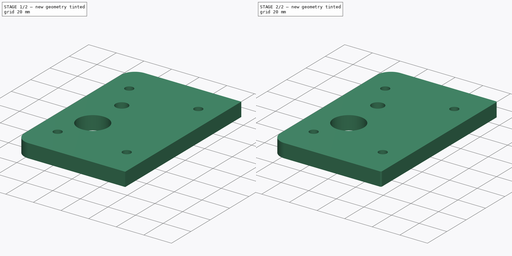
[diagram: build sequence overview — one tinted view per stage of 2, left to right]
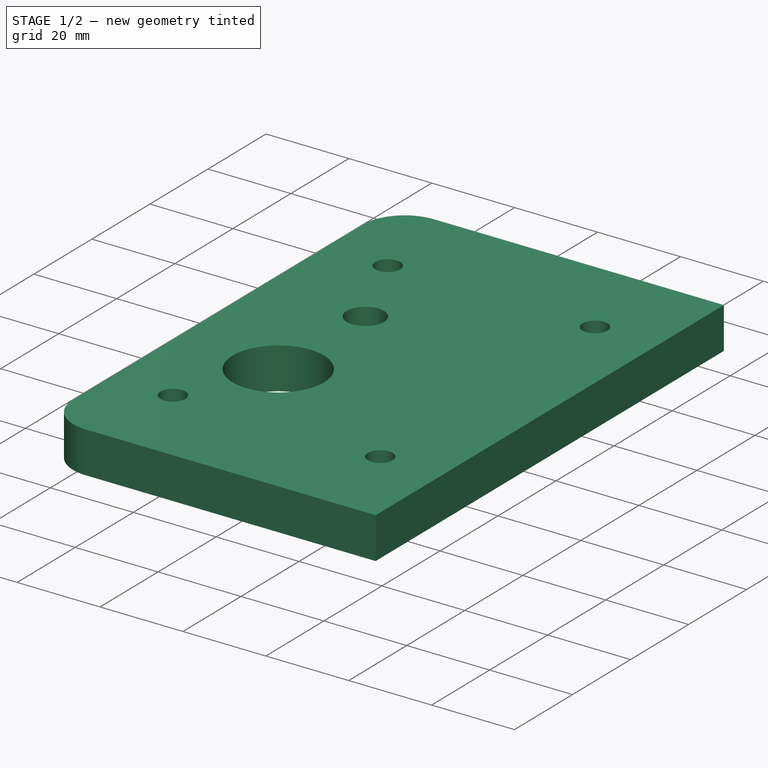
[diagram: stage 1 of 2 — iso view after this stage's code; geometry added in this stage tinted green]
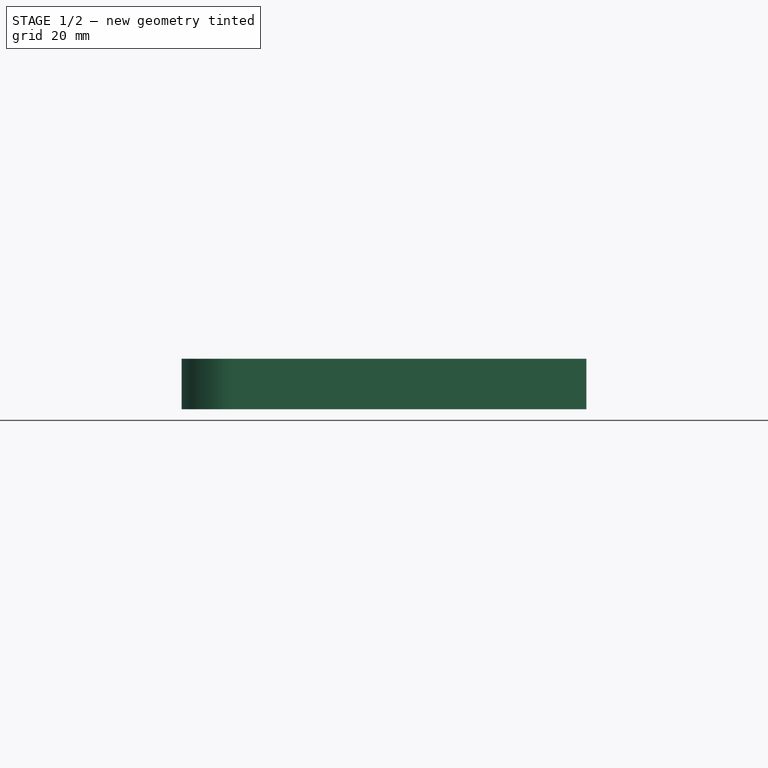
[diagram: stage 1 of 2 — front view after this stage's code; geometry added in this stage tinted green]
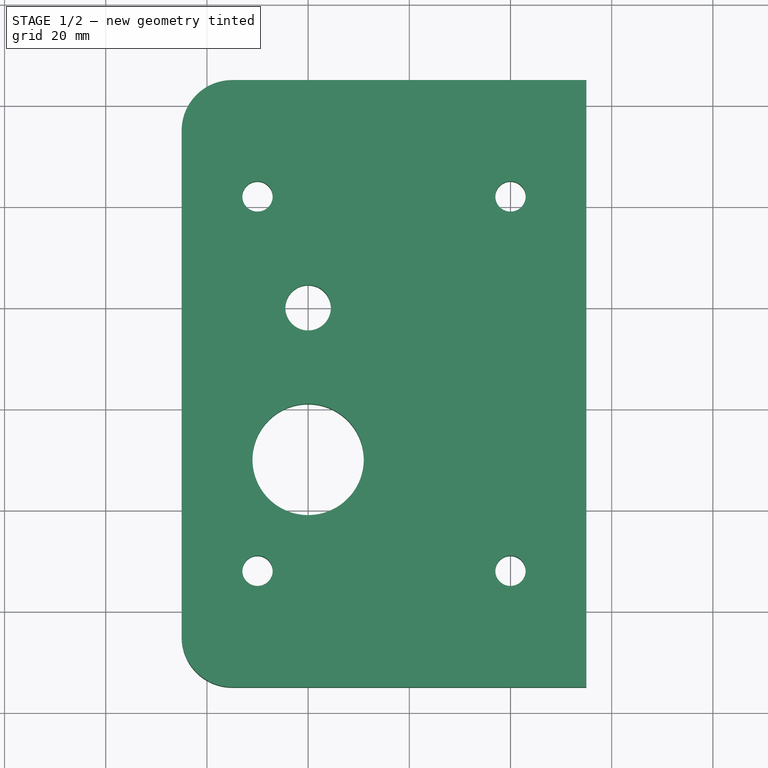
[diagram: stage 1 of 2 — top view after this stage's code; geometry added in this stage tinted green]
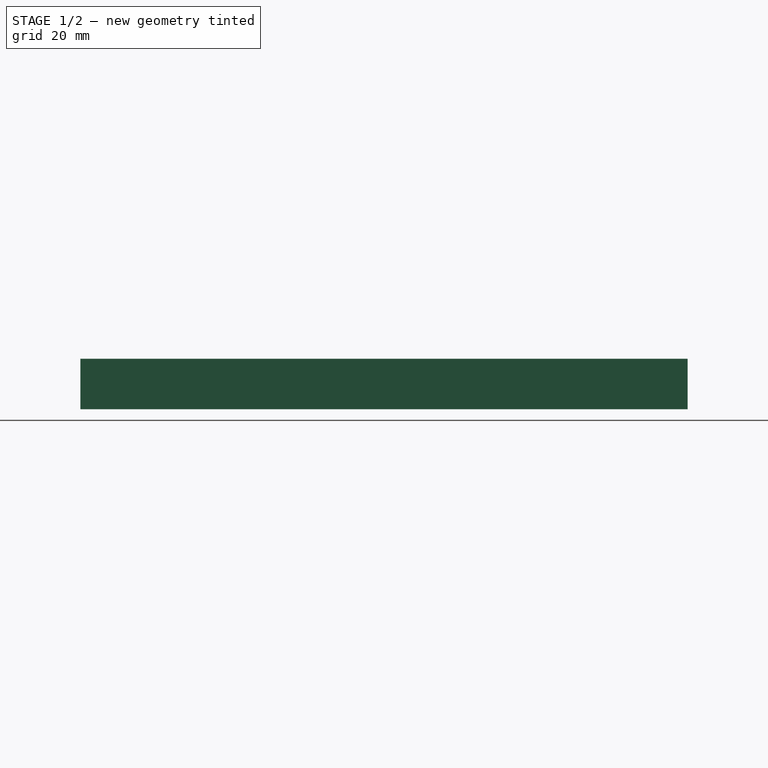
[diagram: stage 1 of 2 — right view after this stage's code; geometry added in this stage tinted green]
FCSTD DOCUMENT  (FreeCAD 0.19R24276 (Git))
Label: BLDC_holder_part1_bottom_V1
License: All rights reserved
LicenseURL: http://en.wikipedia.org/wiki/All_rights_reserved
objects: PartDesign::Fillet×2, Sketcher::SketchObject×1, PartDesign::Pad×1, PartDesign::Body×1
note: 8 computed .brp shape members not serialized (recipe doc carries the construction recipe); baked Part::Feature solids carry a one-line shape summary decoded from their .brp

FEATURE [Sketcher::SketchObject] Sketch  label="Sketch_L80x120"
  FullyConstrained = false
  MapMode = 5
  Support = -> [XY_Plane]
  sketch-geometry (32):
    g0: Circle CenterX=0 CenterY=0 CenterZ=0 NormalX=0 NormalY=0 NormalZ=1 AngleXU=0 Radius=4.5
    g1: Circle CenterX=0 CenterY=-30 CenterZ=0 NormalX=0 NormalY=0 NormalZ=1 AngleXU=0 Radius=11
    g2: LineSegment StartX=-25 StartY=45 StartZ=0 EndX=55 EndY=45 EndZ=0
    g3: LineSegment StartX=55 StartY=45 StartZ=0 EndX=55 EndY=-75 EndZ=0
    g4: LineSegment StartX=55 StartY=-75 StartZ=0 EndX=-25 EndY=-75 EndZ=0
    g5: LineSegment StartX=-25 StartY=-75 StartZ=0 EndX=-25 EndY=45 EndZ=0
    g6: Circle CenterX=-10 CenterY=-52 CenterZ=0 NormalX=0 NormalY=0 NormalZ=1 AngleXU=0 Radius=3
    g7: Circle CenterX=40 CenterY=-52 CenterZ=0 NormalX=0 NormalY=0 NormalZ=1 AngleXU=0 Radius=3
    g8: Circle CenterX=40 CenterY=22 CenterZ=0 NormalX=0 NormalY=0 NormalZ=1 AngleXU=0 Radius=3
    g9: Circle CenterX=-10 CenterY=22 CenterZ=0 NormalX=0 NormalY=0 NormalZ=1 AngleXU=0 Radius=3
    g10: Circle CenterX=0 CenterY=0 CenterZ=0 NormalX=0 NormalY=0 NormalZ=1 AngleXU=0 Radius=11
    g11: LineSegment StartX=14.5 StartY=-15.5 StartZ=0 EndX=-14.5 EndY=-15.5 EndZ=0
    g12: LineSegment StartX=-14.5 StartY=-15.5 StartZ=0 EndX=-14.5 EndY=-44.5 EndZ=0
    g13: LineSegment StartX=-14.5 StartY=-44.5 StartZ=0 EndX=14.5 EndY=-44.5 EndZ=0
    g14: LineSegment StartX=14.5 StartY=-44.5 StartZ=0 EndX=14.5 EndY=-15.5 EndZ=0
    g15: Circle CenterX=0 CenterY=-30 CenterZ=0 NormalX=0 NormalY=0 NormalZ=1 AngleXU=0 Radius=20.5061
    g16: LineSegment StartX=-44.3555 StartY=-59 StartZ=0 EndX=66.9363 EndY=-59 EndZ=0
    g17: LineSegment StartX=66.9363 StartY=-59 StartZ=0 EndX=66.9363 EndY=-67 EndZ=0
    g18: LineSegment StartX=66.9363 StartY=-67 StartZ=0 EndX=-44.3555 EndY=-67 EndZ=0
    g19: LineSegment StartX=-44.3555 StartY=-67 StartZ=0 EndX=-44.3555 EndY=-59 EndZ=0
    g20: LineSegment StartX=-44.3555 StartY=-63 StartZ=0 EndX=70.3737 EndY=-63 EndZ=0
    g21: LineSegment StartX=-44.3555 StartY=29 StartZ=0 EndX=66.9363 EndY=29 EndZ=0
    g22: LineSegment StartX=66.9363 StartY=29 StartZ=0 EndX=66.9363 EndY=37 EndZ=0
    g23: LineSegment StartX=66.9363 StartY=37 StartZ=0 EndX=-44.3555 EndY=37 EndZ=0
    g24: LineSegment StartX=-44.3555 StartY=37 StartZ=0 EndX=-44.3555 EndY=29 EndZ=0
    g25: LineSegment StartX=-44.3555 StartY=33 StartZ=0 EndX=70.3737 EndY=33 EndZ=0
    g26: LineSegment StartX=46.1128 StartY=-15 StartZ=0 EndX=95.0875 EndY=-15 EndZ=0
    g27: LineSegment StartX=104.375 StartY=-74 StartZ=0 EndX=80.8923 EndY=-74 EndZ=0
    g28: LineSegment StartX=80.8923 StartY=-74 StartZ=0 EndX=80.8923 EndY=-66 EndZ=0
    g29: LineSegment StartX=80.8923 StartY=-66 StartZ=0 EndX=104.375 EndY=-66 EndZ=0
    g30: LineSegment StartX=104.375 StartY=-66 StartZ=0 EndX=104.375 EndY=-74 EndZ=0
    g31: LineSegment StartX=80.8923 StartY=-70 StartZ=0 EndX=113.027 EndY=-70 EndZ=0
  constraints (81):
    c: Coincident(g0,g-1)
    c: Diameter(g0) = 9
    c: PointOnObject(g1,g-2)
    c: Diameter(g1) = 22
    c: DistanceY(g1,g0) = 30
    c: Coincident(g2,g3)
    c: Coincident(g3,g4)
    c: Coincident(g4,g5)
    c: Coincident(g5,g2)
    c: Horizontal(g2)
    c: Horizontal(g4)
    c: Vertical(g3)
    c: Vertical(g5)
    c: DistanceY(g4,g1) = 45
    c: DistanceY(g3,g2) = 120
    c: Horizontal(g9,g8)
    c: Horizontal(g6,g7)
    c: Vertical(g9,g6)
    c: Vertical(g8,g7)
    c: Diameter(g6) = 6
    c: Equal(g6,g8)
    c: Equal(g6,g9)
    c: Equal(g6,g7)
    c: DistanceY(g6,g1) = 22
    c: DistanceY(g0,g9) = 22
    c: Coincident(g10,g0)
    c: Diameter(g10) = 22
    c: DistanceX(g7,g3) = 15
    c: DistanceX(g4,g6) = 15
    c: DistanceX(g2,g2) = 80
    c: Coincident(g11,g12)
    c: Coincident(g12,g13)
    c: Coincident(g13,g14)
    c: Coincident(g14,g11)
    c: Equal(g11,g12)
    c: Equal(g11,g13)
    c: Equal(g11,g14)
    c: PointOnObject(g11,g15)
    c: PointOnObject(g12,g15)
    c: PointOnObject(g13,g15)
    c: PointOnObject(g14,g15)
    c: Coincident(g15,g1)
    c: DistanceY(g14,g14) = 29
    c: Vertical(g14)
    c: DistanceX(g2,g0) = 25
    c: Coincident(g16,g17)
    c: Coincident(g17,g18)
    c: Coincident(g18,g19)
    c: Coincident(g19,g16)
    c: Horizontal(g16)
    c: Horizontal(g18)
    c: Vertical(g17)
    c: Vertical(g19)
    c: Horizontal(g20)
    c: Symmetric(g16,g18,g20)
    c: DistanceY(g4,g20) = 12
    c: DistanceY(g19,g19) = 8
    c: Coincident(g21,g22)
    c: Coincident(g22,g23)
    c: Coincident(g23,g24)
    c: Coincident(g24,g21)
    c: Symmetric(g21,g23,g25)
    c: DistanceY(g25,g2) = 12
    c: Horizontal(g23)
    c: Horizontal(g21)
    c: Horizontal(g25)
    c: DistanceY(g24,g24) = 8
    c: Horizontal(g26)
    c: DistanceY(g26,g2) = 60
    c: Coincident(g27,g28)
    c: Coincident(g28,g29)
    c: Coincident(g29,g30)
    c: Coincident(g30,g27)
    c: Horizontal(g27)
    c: Horizontal(g29)
    c: Vertical(g28)
    c: Vertical(g30)
    c: Equal(g17,g28)
    c: Horizontal(g31)
    c: Symmetric(g28,g27,g31)
    c: DistanceY(g28,g16) = 7
FEATURE [PartDesign::Pad] Pad  label="Pad_h10"
  Direction = (1,1,1)
  Length = 10
  Length2 = 100
  Profile = -> Sketch
  Type = 0
FEATURE [PartDesign::Fillet] Fillet
  Base = -> Pad [Edge8,Edge1]
  BaseFeature = -> Pad
  Radius = 10
  SupportTransform = false
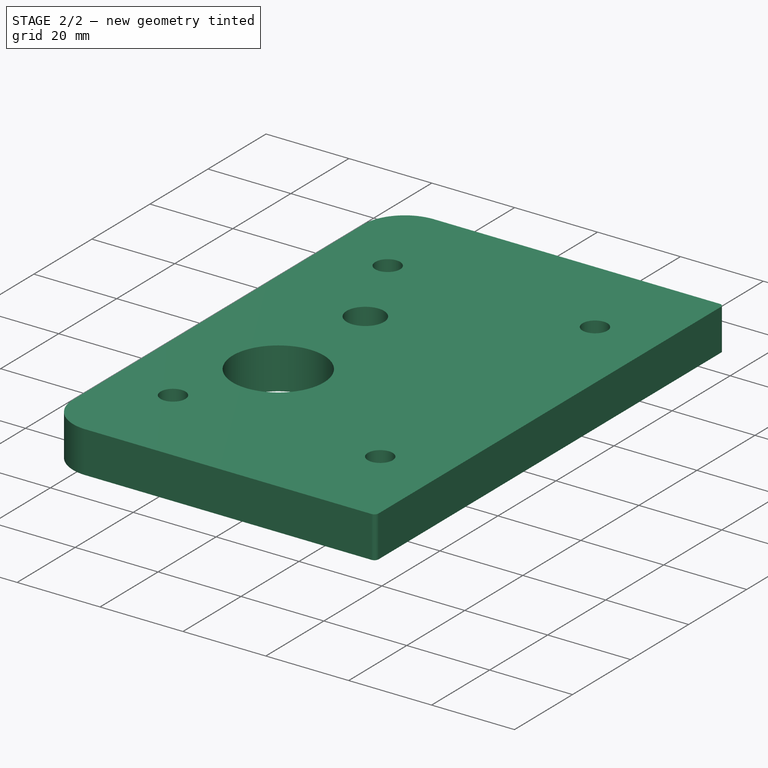
[diagram: stage 2 of 2 — iso view after this stage's code; geometry added in this stage tinted green]
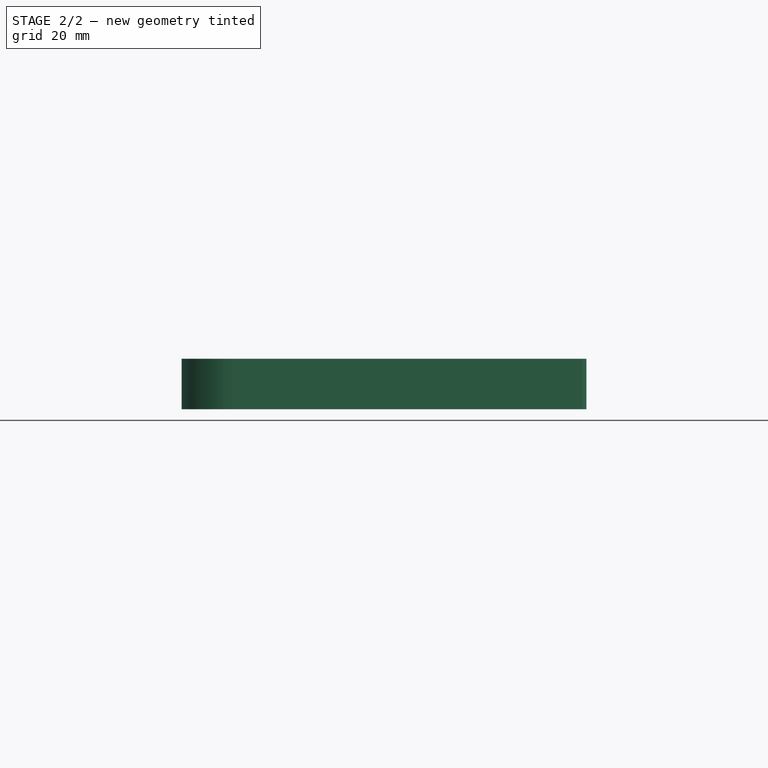
[diagram: stage 2 of 2 — front view after this stage's code; geometry added in this stage tinted green]
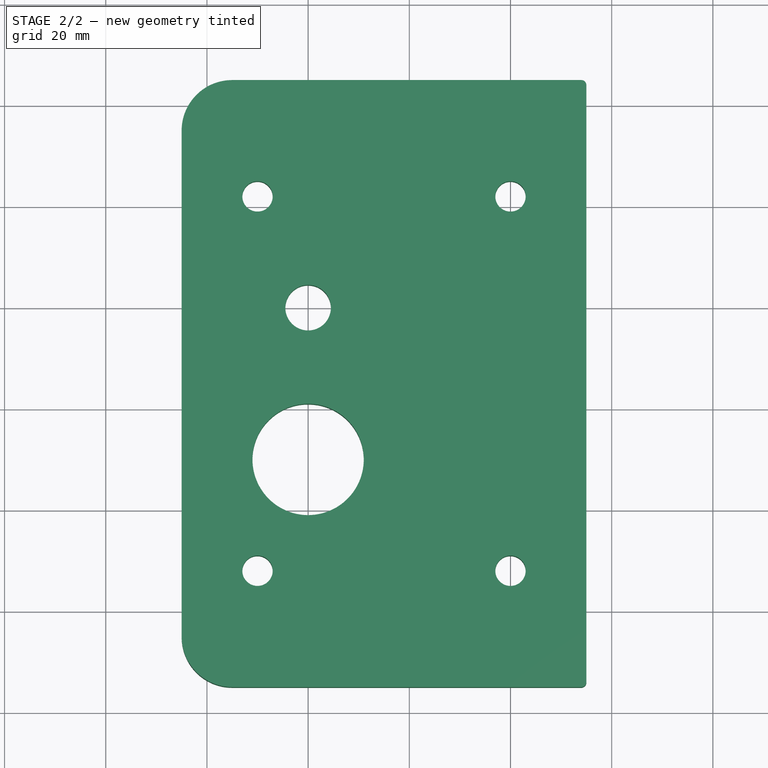
[diagram: stage 2 of 2 — top view after this stage's code; geometry added in this stage tinted green]
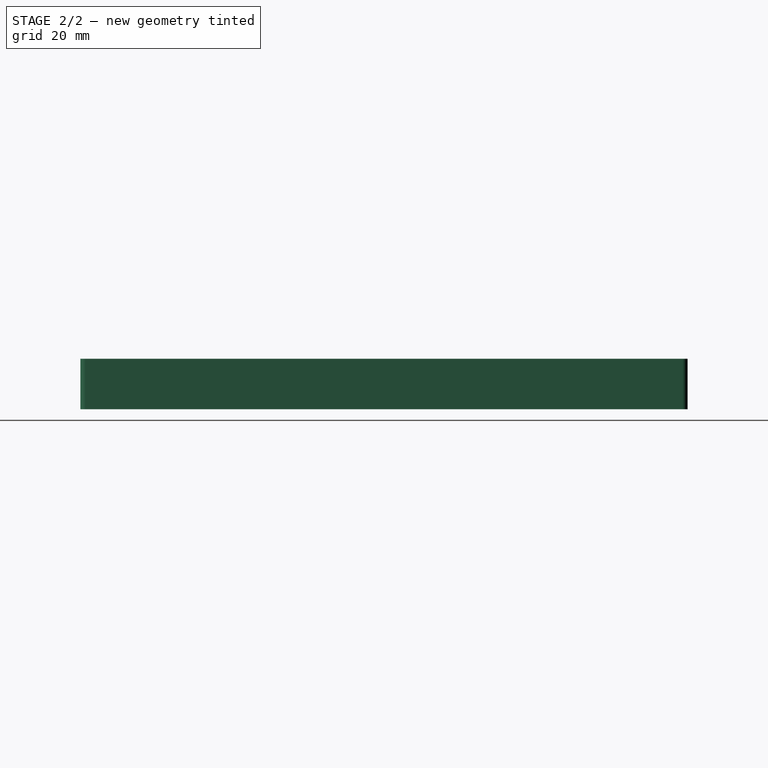
[diagram: stage 2 of 2 — right view after this stage's code; geometry added in this stage tinted green]
FEATURE [PartDesign::Fillet] Fillet001
  Base = -> Fillet [Edge18,Edge3]
  BaseFeature = -> Fillet
  Radius = 1
  SupportTransform = false
FEATURE [PartDesign::Body] Body
  Group = -> [Sketch,Pad,Fillet,Fillet001]
  Origin = -> Origin
  Tip = -> Fillet001
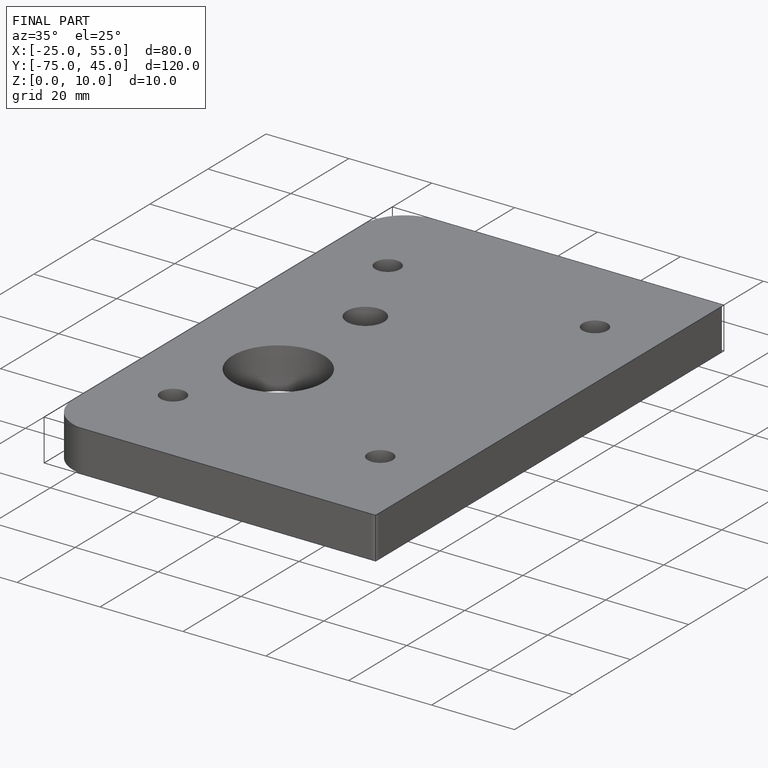
[diagram: finished part — iso view with bounding-box wireframe]
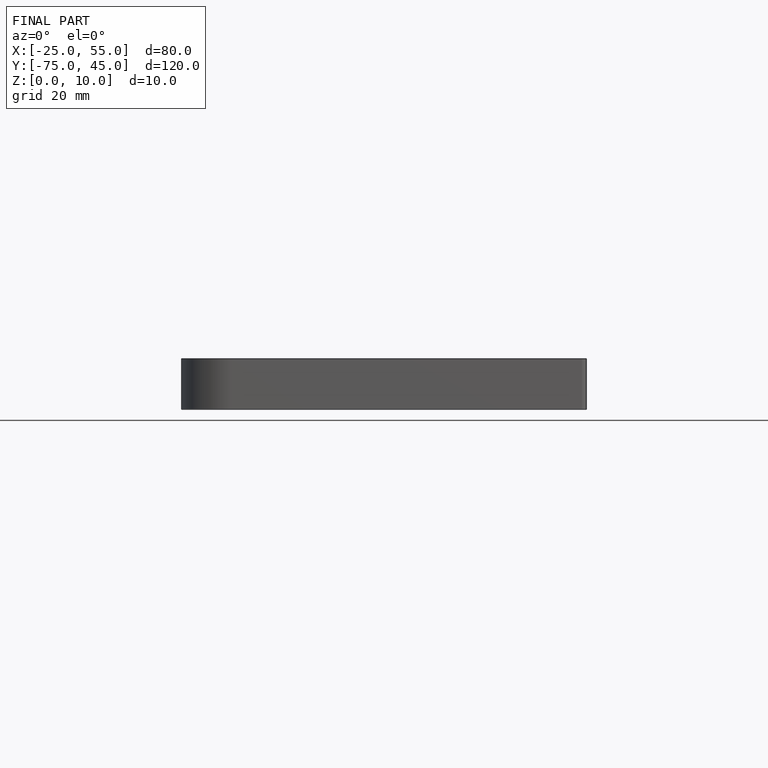
[diagram: finished part — front view with bounding-box wireframe]
